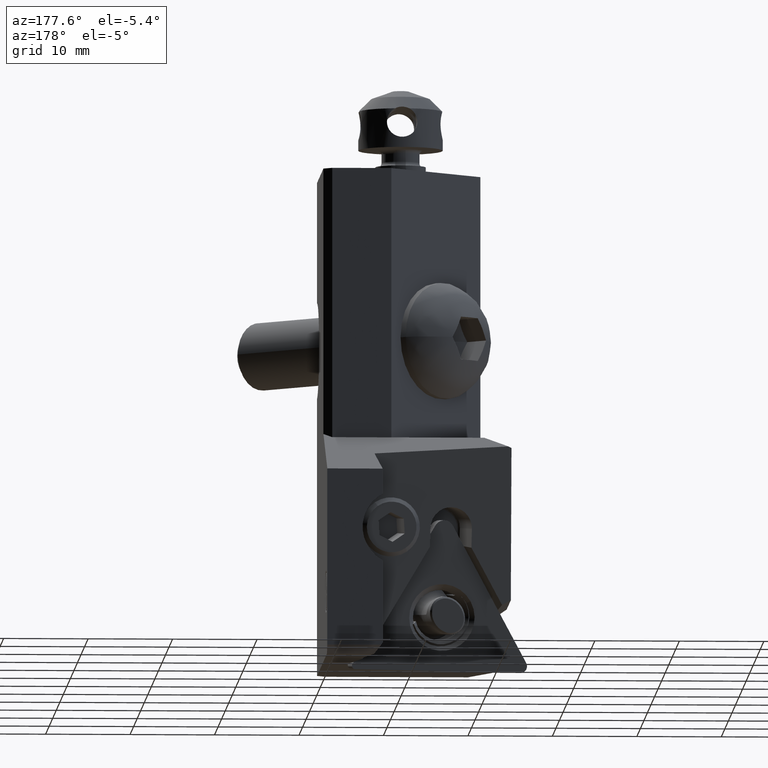
[diagram: clean part render]
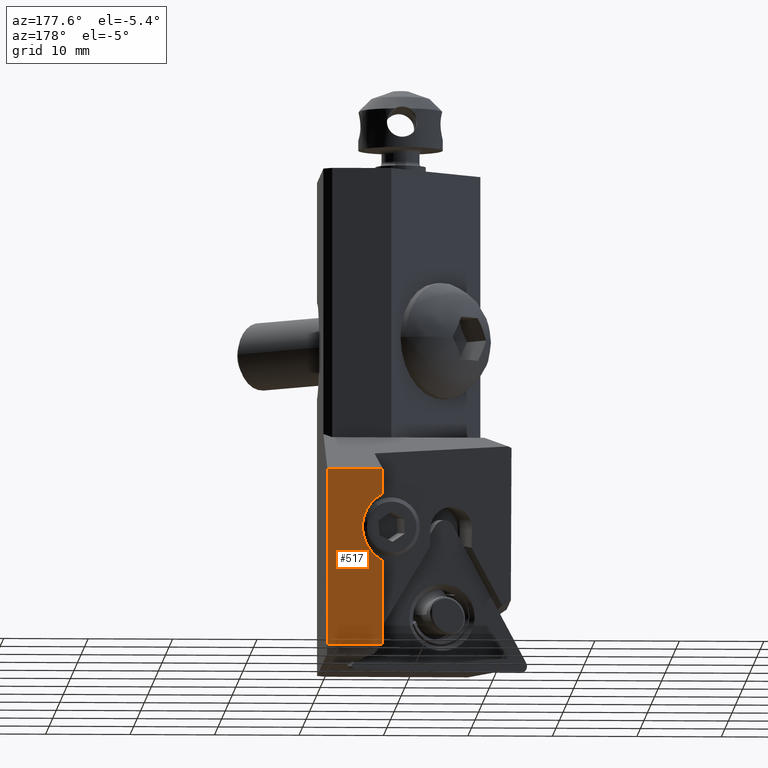
[diagram: same view with one face highlighted and labeled with its STEP entity id]
A machine part, auxiliary view. The second image highlights one B-rep face of the part: STEP entity #517.
In plain terms, the highlighted planar face has unit normal (0, 1, 0).
Its self-contained STEP definition (entity closure, byte-faithful):
#517=ADVANCED_FACE('',(#820),#730,.T.);
#730=PLANE('',#4071);
#820=FACE_OUTER_BOUND('',#1031,.T.);
#1031=EDGE_LOOP('',(#1416,#1417,#1418,#1419,#1420,#1421,#1422));
#1246=ELLIPSE('',#4070,4.58057679303406,4.499999999992);
#1416=ORIENTED_EDGE('',*,*,#2831,.T.);
#1417=ORIENTED_EDGE('',*,*,#2845,.T.);
#1418=ORIENTED_EDGE('',*,*,#2846,.T.);
#1419=ORIENTED_EDGE('',*,*,#2790,.F.);
#1420=ORIENTED_EDGE('',*,*,#2840,.F.);
#1421=ORIENTED_EDGE('',*,*,#2837,.F.);
#1422=ORIENTED_EDGE('',*,*,#2835,.F.);
#2421=VERTEX_POINT('',#5763);
#2422=VERTEX_POINT('',#5765);
#2453=VERTEX_POINT('',#5844);
#2454=VERTEX_POINT('',#5846);
#2457=VERTEX_POINT('',#5854);
#2458=VERTEX_POINT('',#5858);
#2461=VERTEX_POINT('',#5873);
#2790=EDGE_CURVE('',#2421,#2422,#3331,.T.);
#2831=EDGE_CURVE('',#2454,#2453,#3366,.T.);
#2835=EDGE_CURVE('',#2454,#2457,#3368,.T.);
#2837=EDGE_CURVE('',#2457,#2458,#3370,.T.);
#2840=EDGE_CURVE('',#2458,#2421,#3373,.T.);
#2845=EDGE_CURVE('',#2453,#2461,#1246,.T.);
#2846=EDGE_CURVE('',#2461,#2422,#3376,.T.);
#3331=LINE('',#5764,#3610);
#3366=LINE('',#5845,#3645);
#3368=LINE('',#5853,#3647);
#3370=LINE('',#5857,#3649);
#3373=LINE('',#5862,#3652);
#3376=LINE('',#5874,#3655);
#3610=VECTOR('',#4562,1.);
#3645=VECTOR('',#4625,1.);
#3647=VECTOR('',#4633,1.);
#3649=VECTOR('',#4637,1.);
#3652=VECTOR('',#4642,1.);
#3655=VECTOR('',#4657,1.);
#4070=AXIS2_PLACEMENT_3D('',#5872,#4655,#4656);
#4071=AXIS2_PLACEMENT_3D('',#5875,#4658,#4659);
#4562=DIRECTION('',(-1.,0.,0.));
#4625=DIRECTION('',(-4.249100926884E-13,0.,1.));
#4633=DIRECTION('',(0.510003756155614,-2.84067494098408E-13,-0.860172173874024));
#4637=DIRECTION('',(1.,0.,0.));
#4642=DIRECTION('',(0.,2.445255219692E-14,1.));
#4655=DIRECTION('',(0.,-1.,0.));
#4656=DIRECTION('',(-0.833226974346284,0.,-0.552931107120713));
#4657=DIRECTION('',(-8.507557177061E-14,1.552256046341E-13,1.));
#4658=DIRECTION('',(0.,1.,0.));
#4659=DIRECTION('',(0.,0.,-1.));
#5763=CARTESIAN_POINT('',(0.,30.,-36.66307658155));
#5764=CARTESIAN_POINT('',(0.,30.,-36.66307658155));
#5765=CARTESIAN_POINT('',(-6.55862724885,30.,-36.66307658155));
#5844=CARTESIAN_POINT('',(-6.55862724885475,30.,-47.5898613391893));
#5845=CARTESIAN_POINT('',(-6.55862724885,30.,-57.31590517289));
#5846=CARTESIAN_POINT('',(-6.55862724885,30.,-57.31590517289));
#5853=CARTESIAN_POINT('',(-6.55862724885,30.,-57.31590517289));
#5854=CARTESIAN_POINT('',(-6.3991671418,30.,-57.58485053902));
#5857=CARTESIAN_POINT('',(-6.3991671418,30.,-57.58485053902));
#5858=CARTESIAN_POINT('',(0.,30.,-57.58485053902));
#5862=CARTESIAN_POINT('',(0.,30.,-57.58485053902));
#5872=CARTESIAN_POINT('',(-8.73301268421901,30.,-43.6494622167174));
#5873=CARTESIAN_POINT('',(-6.55862724885,30.,-39.6384412408326));
#5874=CARTESIAN_POINT('',(-6.55862724885,30.,-39.63844124083));
#5875=CARTESIAN_POINT('',(-3.279313624425,30.,-47.12396356029));